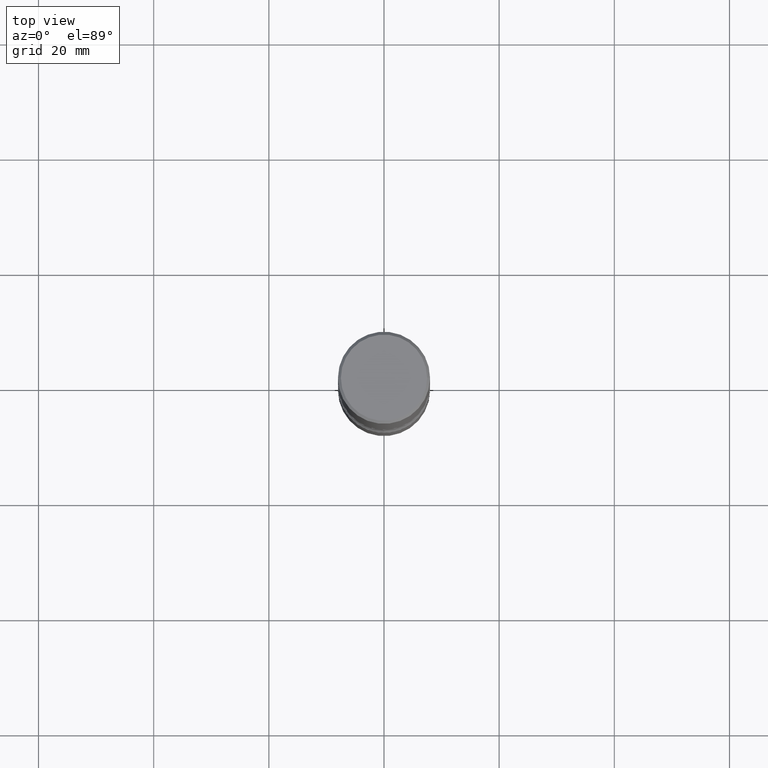
[diagram: clean part render]
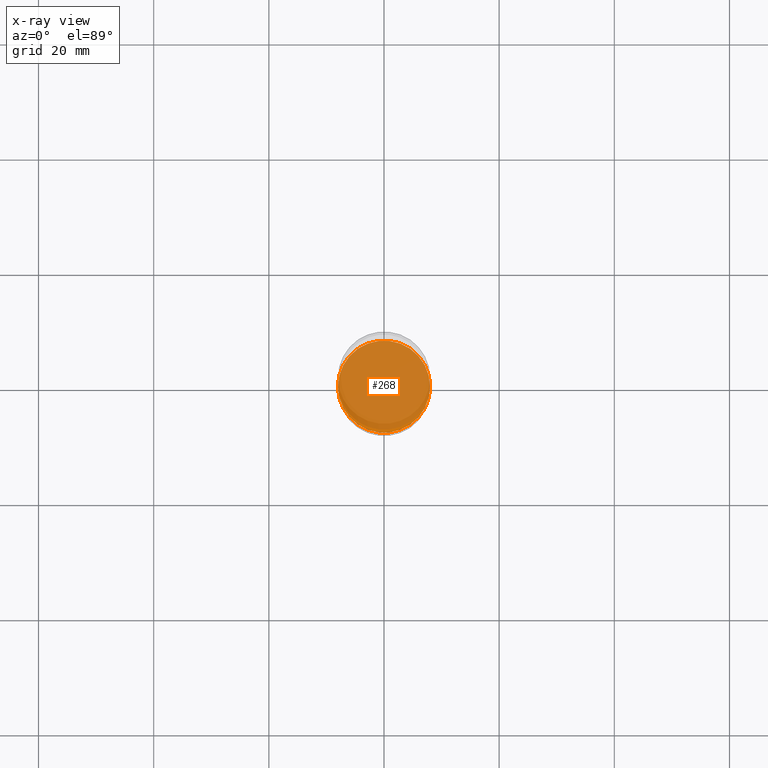
[diagram: x-ray — body ghosted, one internal face saturated and labeled with its STEP entity id]
A machine part, top view, then the same camera in x-ray: the body is ghosted and one INTERNAL B-rep face — a face not visible from any outside direction — is saturated and labeled: STEP entity #268.
In plain terms, the highlighted planar face has unit normal (0, -0, -1).
Its self-contained STEP definition (entity closure, byte-faithful):
#49 = CARTESIAN_POINT ( 'NONE',  ( -0.3149500000000002853, -1.236736124223832383E-14, -3.543300000000000782 ) ) ;
#88 = AXIS2_PLACEMENT_3D ( 'NONE', #214, #507, #423 ) ;
#118 = PLANE ( 'NONE',  #516 ) ;
#128 = DIRECTION ( 'NONE',  ( 1.000000000000000000, -6.982962677686263555E-15, 0.000000000000000000 ) ) ;
#146 = VERTEX_POINT ( 'NONE', #285 ) ;
#167 = ORIENTED_EDGE ( 'NONE', *, *, #402, .T. ) ;
#214 = CARTESIAN_POINT ( 'NONE',  ( 8.665029620955796311E-29, -1.237136582792292023E-14, -3.543300000000000782 ) ) ;
#216 = AXIS2_PLACEMENT_3D ( 'NONE', #377, #342, #128 ) ;
#260 = CIRCLE ( 'NONE', #88, 0.3149500000000002853 ) ;
#268 = ADVANCED_FACE ( 'NONE', ( #337 ), #118, .F. ) ;
#285 = CARTESIAN_POINT ( 'NONE',  ( 0.3149500000000002853, -1.457064992326021168E-14, -3.543300000000000782 ) ) ;
#286 = CARTESIAN_POINT ( 'NONE',  ( 4.372705008681123089E-29, -1.851821897664530113E-14, -3.543300000000000338 ) ) ;
#327 = CIRCLE ( 'NONE', #216, 0.3149500000000002853 ) ;
#334 = EDGE_CURVE ( 'NONE', #441, #146, #327, .T. ) ;
#337 = FACE_OUTER_BOUND ( 'NONE', #528, .T. ) ;
#342 = DIRECTION ( 'NONE',  ( -2.445468806185136597E-29, 3.491481338843145583E-15, 1.000000000000000000 ) ) ;
#377 = CARTESIAN_POINT ( 'NONE',  ( 8.665029620955796311E-29, -1.237136582792292023E-14, -3.543300000000000782 ) ) ;
#402 = EDGE_CURVE ( 'NONE', #146, #441, #260, .T. ) ;
#423 = DIRECTION ( 'NONE',  ( 1.000000000000000000, -6.982962677686263555E-15, 0.000000000000000000 ) ) ;
#441 = VERTEX_POINT ( 'NONE', #49 ) ;
#460 = DIRECTION ( 'NONE',  ( 2.438088387897960049E-29, -3.491481338843145188E-15, -1.000000000000000000 ) ) ;
#494 = DIRECTION ( 'NONE',  ( -1.000000000000000000, 6.982962677686265922E-15, -4.876176775795935793E-29 ) ) ;
#507 = DIRECTION ( 'NONE',  ( -2.445468806185136597E-29, 3.491481338843145583E-15, 1.000000000000000000 ) ) ;
#515 = ORIENTED_EDGE ( 'NONE', *, *, #334, .T. ) ;
#516 = AXIS2_PLACEMENT_3D ( 'NONE', #286, #460, #494 ) ;
#528 = EDGE_LOOP ( 'NONE', ( #167, #515 ) ) ;